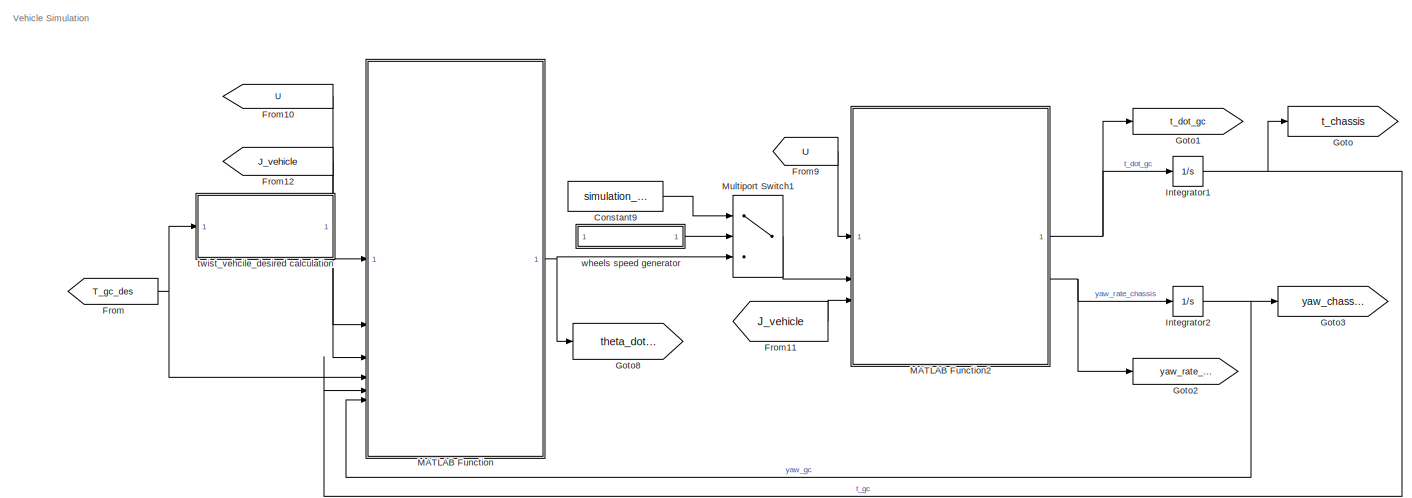
[diagram: root canvas - part 1/4, top center region]
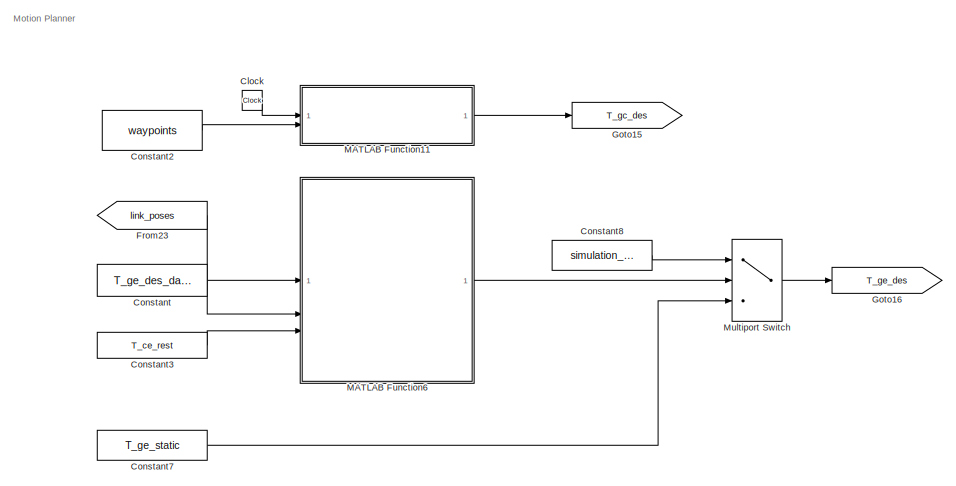
[diagram: root canvas - part 2/4, top left region]
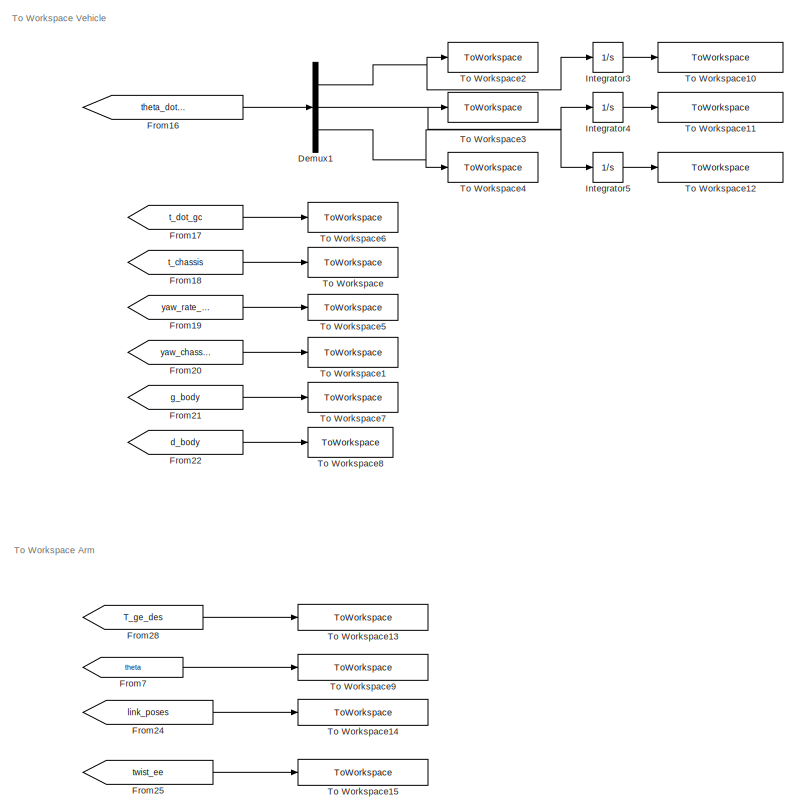
[diagram: root canvas - part 3/4, middle right region]
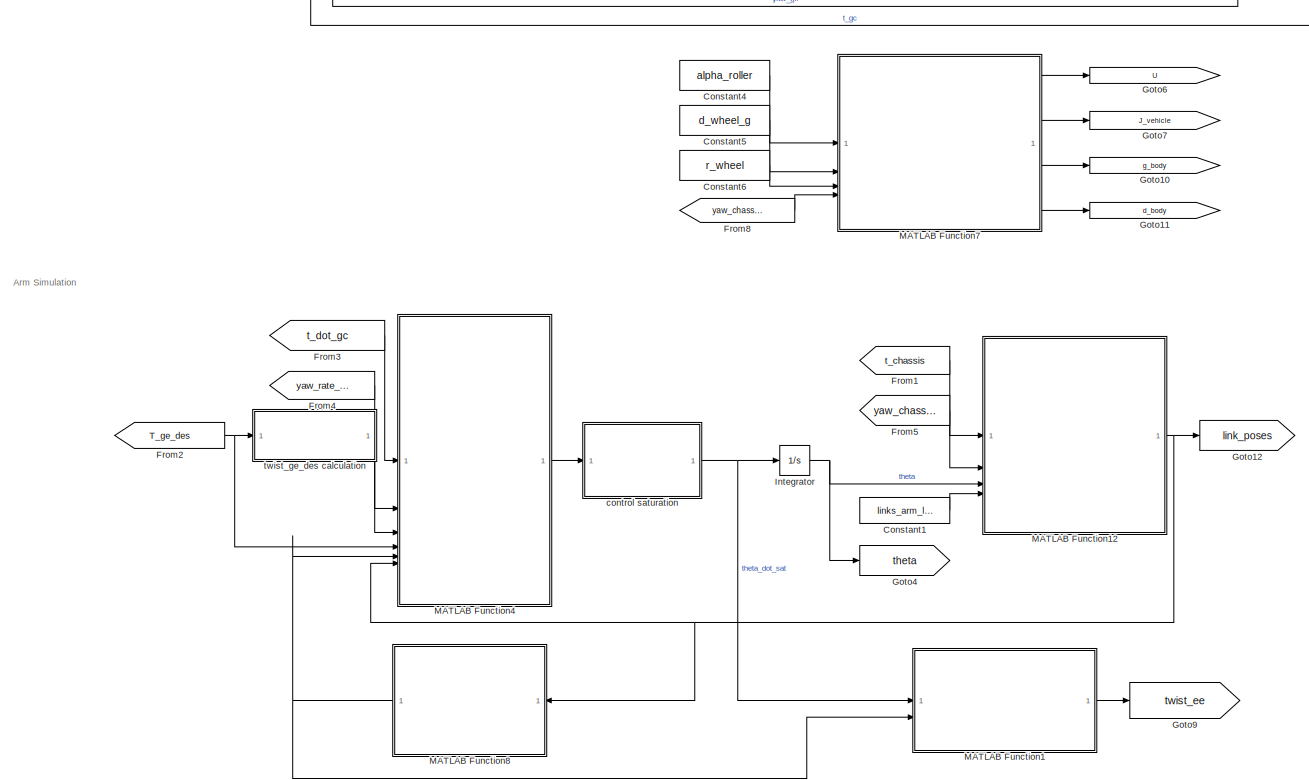
[diagram: root canvas - part 4/4, bottom center region]
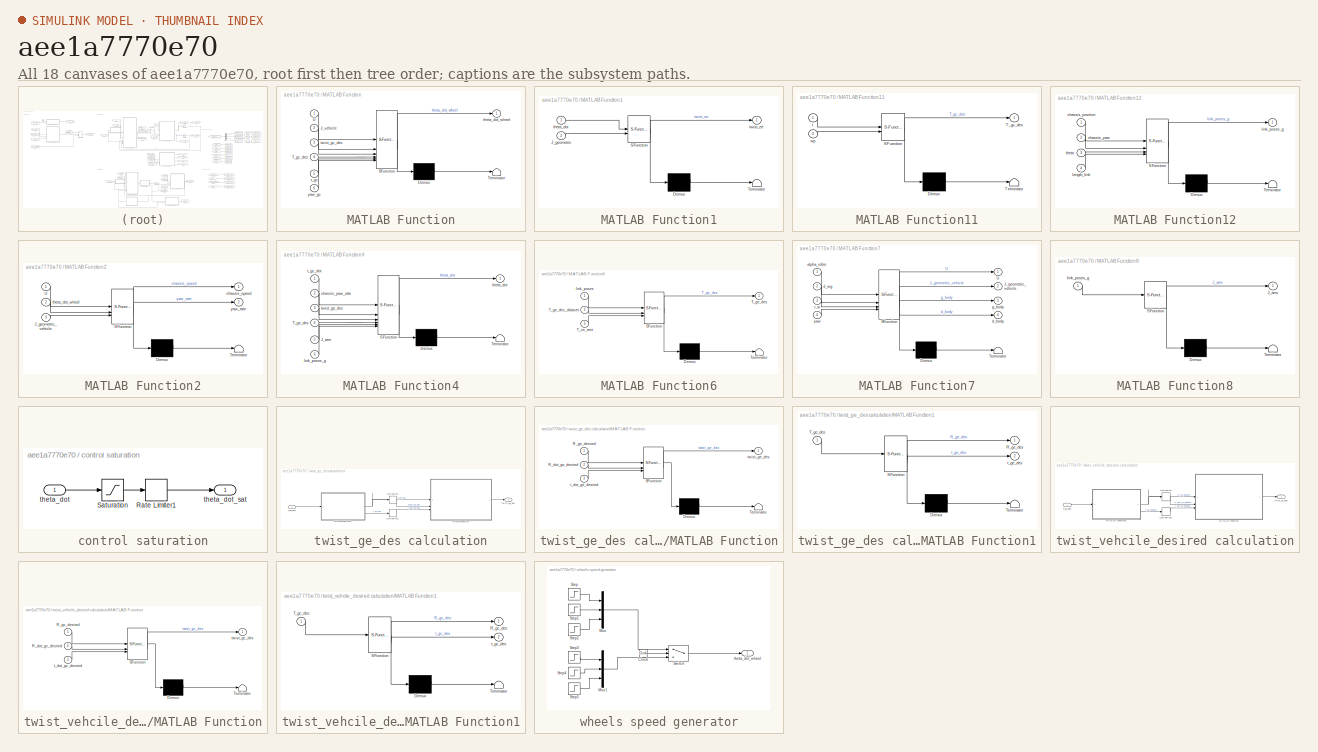
[diagram: thumbnail index - all 18 canvases of the model, root first then tree order]
MODEL slx_aee1a7770e70
KIND model
CONFIG AbsTol = auto
CONFIG EnableMultiTasking = off
CONFIG FixedStep = simulation_time_step
CONFIG MaxStep = auto
CONFIG MinStep = auto
CONFIG RelTol = 1e-3
CONFIG SampleTimeConstraint = Unconstrained
CONFIG SolverName = FixedStepAuto
CONFIG StartTime = 0.0
CONFIG StopTime = 120
BLOCK [Clock] Clock
BLOCK [Constant] Constant
  Value = T_ge_des_dataset
BLOCK [Constant] Constant1
  Value = links_arm_length
BLOCK [Constant] Constant2
  Value = waypoints
BLOCK [Constant] Constant3
  Value = T_ce_rest
BLOCK [Constant] Constant4
  Value = alpha_roller
BLOCK [Constant] Constant5
  Value = d_wheel_g
BLOCK [Constant] Constant6
  Value = r_wheel
BLOCK [Constant] Constant7
  Value = T_ge_static
BLOCK [Constant] Constant8
  Value = simulation_choice
BLOCK [Constant] Constant9
  Value = simulation_choice
BLOCK [Demux] Demux1
  Outputs = 3
BLOCK [From] From
  GotoTag = T_gc_des
BLOCK [From] From1
  GotoTag = t_chassis
BLOCK [From] From10
  GotoTag = U
BLOCK [From] From11
  GotoTag = J_vehicle
BLOCK [From] From12
  GotoTag = J_vehicle
BLOCK [From] From16
  GotoTag = theta_dot_wheels
BLOCK [From] From17
  GotoTag = t_dot_gc
BLOCK [From] From18
  GotoTag = t_chassis
BLOCK [From] From19
  GotoTag = yaw_rate_chassis
BLOCK [From] From2
  GotoTag = T_ge_des
BLOCK [From] From20
  GotoTag = yaw_chassis
BLOCK [From] From21
  GotoTag = g_body
BLOCK [From] From22
  GotoTag = d_body
BLOCK [From] From23
  GotoTag = link_poses
BLOCK [From] From24
  GotoTag = link_poses
BLOCK [From] From25
  GotoTag = twist_ee
BLOCK [From] From28
  GotoTag = T_ge_des
BLOCK [From] From3
  GotoTag = t_dot_gc
BLOCK [From] From4
  GotoTag = yaw_rate_chassis
BLOCK [From] From5
  GotoTag = yaw_chassis
BLOCK [From] From7
  GotoTag = theta
BLOCK [From] From8
  GotoTag = yaw_chassis
BLOCK [From] From9
  GotoTag = U
BLOCK [Goto] Goto
  GotoTag = t_chassis
BLOCK [Goto] Goto1
  GotoTag = t_dot_gc
BLOCK [Goto] Goto10
  GotoTag = g_body
BLOCK [Goto] Goto11
  GotoTag = d_body
BLOCK [Goto] Goto12
  GotoTag = link_poses
BLOCK [Goto] Goto15
  GotoTag = T_gc_des
BLOCK [Goto] Goto16
  GotoTag = T_ge_des
BLOCK [Goto] Goto2
  GotoTag = yaw_rate_chassis
BLOCK [Goto] Goto3
  GotoTag = yaw_chassis
BLOCK [Goto] Goto4
  GotoTag = theta
BLOCK [Goto] Goto6
  GotoTag = U
BLOCK [Goto] Goto7
  GotoTag = J_vehicle
BLOCK [Goto] Goto8
  GotoTag = theta_dot_wheels
BLOCK [Goto] Goto9
  GotoTag = twist_ee
BLOCK [Integrator] Integrator
  InitialCondition = theta_arm_initial
  WrapState = on
  WrappedStateLowerValue = zeros(7,1)
  WrappedStateUpperValue = 2 * pi * ones(7,1)
BLOCK [Integrator] Integrator1
  InitialCondition = chassis_position_initial
BLOCK [Integrator] Integrator2
  WrappedStateLowerValue = 0
  WrappedStateUpperValue = 2*pi
BLOCK [Integrator] Integrator3
BLOCK [Integrator] Integrator4
BLOCK [Integrator] Integrator5
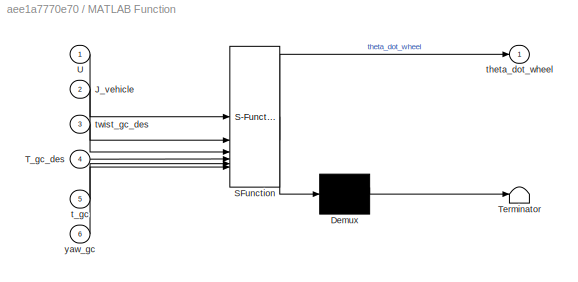
BLOCK [SubSystem] MATLAB Function
  ErrorFcn = Stateflow.Translate.translate
  PermitHierarchicalResolution = ExplicitOnly
  SFBlockType = MATLAB Function
  TreatAsAtomicUnit = on
BLOCK [Demux] MATLAB Function/ Demux 
  Outputs = 1
BLOCK [S-Function] MATLAB Function/ SFunction 
  EnableBusSupport = on
  FunctionName = sf_sfun
  PortCounts = [6 2]
  SFcnIsStateOwnerBlock = off
  SFunctionDeploymentMode = off
  Tag = Stateflow S-Function 5
BLOCK [Terminator] MATLAB Function/ Terminator 
BLOCK [Inport] MATLAB Function/J_vehicle
  Port = 2
BLOCK [Inport] MATLAB Function/T_gc_des
  Port = 4
BLOCK [Inport] MATLAB Function/U
BLOCK [Inport] MATLAB Function/t_gc
  Port = 5
BLOCK [Outport] MATLAB Function/theta_dot_wheel
BLOCK [Inport] MATLAB Function/twist_gc_des
  Port = 3
BLOCK [Inport] MATLAB Function/yaw_gc
  Port = 6
BLOCK [SubSystem] MATLAB Function1
  ErrorFcn = Stateflow.Translate.translate
  PermitHierarchicalResolution = ExplicitOnly
  SFBlockType = MATLAB Function
  TreatAsAtomicUnit = on
BLOCK [Demux] MATLAB Function1/ Demux 
  Outputs = 1
BLOCK [S-Function] MATLAB Function1/ SFunction 
  EnableBusSupport = on
  FunctionName = sf_sfun
  PortCounts = [2 2]
  SFcnIsStateOwnerBlock = off
  SFunctionDeploymentMode = off
  Tag = Stateflow S-Function 7
BLOCK [Terminator] MATLAB Function1/ Terminator 
BLOCK [Inport] MATLAB Function1/J_geometric
  Port = 2
BLOCK [Inport] MATLAB Function1/theta_dot
BLOCK [Outport] MATLAB Function1/twist_ee
BLOCK [SubSystem] MATLAB Function11
  ErrorFcn = Stateflow.Translate.translate
  PermitHierarchicalResolution = ExplicitOnly
  SFBlockType = MATLAB Function
  TreatAsAtomicUnit = on
BLOCK [Demux] MATLAB Function11/ Demux 
  Outputs = 1
BLOCK [S-Function] MATLAB Function11/ SFunction 
  EnableBusSupport = on
  FunctionName = sf_sfun
  PortCounts = [2 2]
  SFcnIsStateOwnerBlock = off
  SFunctionDeploymentMode = off
  Tag = Stateflow S-Function 8
BLOCK [Terminator] MATLAB Function11/ Terminator 
BLOCK [Outport] MATLAB Function11/T_gc_des
BLOCK [Inport] MATLAB Function11/t
BLOCK [Inport] MATLAB Function11/wp
  Port = 2
BLOCK [SubSystem] MATLAB Function12
  ErrorFcn = Stateflow.Translate.translate
  PermitHierarchicalResolution = ExplicitOnly
  SFBlockType = MATLAB Function
  TreatAsAtomicUnit = on
BLOCK [Demux] MATLAB Function12/ Demux 
  Outputs = 1
BLOCK [S-Function] MATLAB Function12/ SFunction 
  EnableBusSupport = on
  FunctionName = sf_sfun
  PortCounts = [4 2]
  SFcnIsStateOwnerBlock = off
  SFunctionDeploymentMode = off
  Tag = Stateflow S-Function 17
BLOCK [Terminator] MATLAB Function12/ Terminator 
BLOCK [Inport] MATLAB Function12/chassis_position
BLOCK [Inport] MATLAB Function12/chassis_yaw
  Port = 2
BLOCK [Inport] MATLAB Function12/length_link
  Port = 4
BLOCK [Outport] MATLAB Function12/link_poses_g
BLOCK [Inport] MATLAB Function12/theta
  Port = 3
BLOCK [SubSystem] MATLAB Function2
  ErrorFcn = Stateflow.Translate.translate
  PermitHierarchicalResolution = ExplicitOnly
  SFBlockType = MATLAB Function
  TreatAsAtomicUnit = on
BLOCK [Demux] MATLAB Function2/ Demux 
  Outputs = 1
BLOCK [S-Function] MATLAB Function2/ SFunction 
  EnableBusSupport = on
  FunctionName = sf_sfun
  PortCounts = [3 3]
  SFcnIsStateOwnerBlock = off
  SFunctionDeploymentMode = off
  Tag = Stateflow S-Function 18
BLOCK [Terminator] MATLAB Function2/ Terminator 
BLOCK [Inport] MATLAB Function2/J_geometric_vehicle
  Port = 3
BLOCK [Inport] MATLAB Function2/U
BLOCK [Outport] MATLAB Function2/chassis_speed
BLOCK [Inport] MATLAB Function2/theta_dot_wheel
  Port = 2
BLOCK [Outport] MATLAB Function2/yaw_rate
  Port = 2
BLOCK [SubSystem] MATLAB Function4
  ErrorFcn = Stateflow.Translate.translate
  PermitHierarchicalResolution = ExplicitOnly
  SFBlockType = MATLAB Function
  TreatAsAtomicUnit = on
BLOCK [Demux] MATLAB Function4/ Demux 
  Outputs = 1
BLOCK [S-Function] MATLAB Function4/ SFunction 
  EnableBusSupport = on
  FunctionName = sf_sfun
  PortCounts = [6 2]
  SFcnIsStateOwnerBlock = off
  SFunctionDeploymentMode = off
  Tag = Stateflow S-Function 19
BLOCK [Terminator] MATLAB Function4/ Terminator 
BLOCK [Inport] MATLAB Function4/J_arm
  Port = 5
BLOCK [Inport] MATLAB Function4/T_ge_des
  Port = 4
BLOCK [Inport] MATLAB Function4/chassis_yaw_rate
  Port = 2
BLOCK [Inport] MATLAB Function4/link_poses_g
  Port = 6
BLOCK [Inport] MATLAB Function4/t_gc_dot
BLOCK [Outport] MATLAB Function4/theta_dot
BLOCK [Inport] MATLAB Function4/twist_ge_des
  Port = 3
BLOCK [SubSystem] MATLAB Function6
  ErrorFcn = Stateflow.Translate.translate
  PermitHierarchicalResolution = ExplicitOnly
  SFBlockType = MATLAB Function
  TreatAsAtomicUnit = on
BLOCK [Demux] MATLAB Function6/ Demux 
  Outputs = 1
BLOCK [S-Function] MATLAB Function6/ SFunction 
  EnableBusSupport = on
  FunctionName = sf_sfun
  PortCounts = [3 2]
  SFcnIsStateOwnerBlock = off
  SFunctionDeploymentMode = off
  Tag = Stateflow S-Function 21
BLOCK [Terminator] MATLAB Function6/ Terminator 
BLOCK [Inport] MATLAB Function6/T_ce_rest
  Port = 3
BLOCK [Outport] MATLAB Function6/T_ge_des
BLOCK [Inport] MATLAB Function6/T_ge_des_dataset
  Port = 2
BLOCK [Inport] MATLAB Function6/link_poses
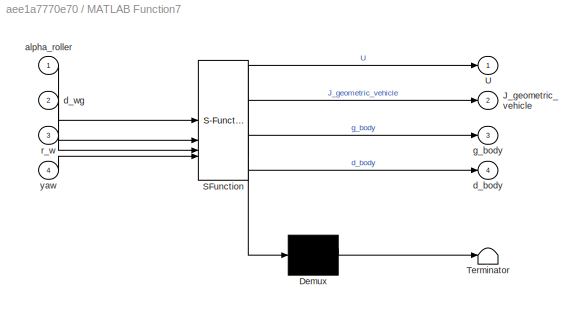
BLOCK [SubSystem] MATLAB Function7
  ErrorFcn = Stateflow.Translate.translate
  PermitHierarchicalResolution = ExplicitOnly
  SFBlockType = MATLAB Function
  TreatAsAtomicUnit = on
BLOCK [Demux] MATLAB Function7/ Demux 
  Outputs = 1
BLOCK [S-Function] MATLAB Function7/ SFunction 
  EnableBusSupport = on
  FunctionName = sf_sfun
  PortCounts = [4 5]
  SFcnIsStateOwnerBlock = off
  SFunctionDeploymentMode = off
  Tag = Stateflow S-Function 22
BLOCK [Terminator] MATLAB Function7/ Terminator 
BLOCK [Outport] MATLAB Function7/J_geometric_vehicle
  Port = 2
BLOCK [Outport] MATLAB Function7/U
BLOCK [Inport] MATLAB Function7/alpha_roller
BLOCK [Outport] MATLAB Function7/d_body
  Port = 4
BLOCK [Inport] MATLAB Function7/d_wg
  Port = 2
BLOCK [Outport] MATLAB Function7/g_body
  Port = 3
BLOCK [Inport] MATLAB Function7/r_w
  Port = 3
BLOCK [Inport] MATLAB Function7/yaw
  Port = 4
BLOCK [SubSystem] MATLAB Function8
  ErrorFcn = Stateflow.Translate.translate
  NameLocation = top
  PermitHierarchicalResolution = ExplicitOnly
  SFBlockType = MATLAB Function
  TreatAsAtomicUnit = on
BLOCK [Demux] MATLAB Function8/ Demux 
  Outputs = 1
BLOCK [S-Function] MATLAB Function8/ SFunction 
  EnableBusSupport = on
  FunctionName = sf_sfun
  PortCounts = [1 2]
  SFcnIsStateOwnerBlock = off
  SFunctionDeploymentMode = off
  Tag = Stateflow S-Function 23
BLOCK [Terminator] MATLAB Function8/ Terminator 
BLOCK [Outport] MATLAB Function8/J_arm
BLOCK [Inport] MATLAB Function8/link_poses_g
BLOCK [MultiPortSwitch] Multiport Switch
  InputSameDT = off
  Inputs = 2
  SaturateOnIntegerOverflow = off
BLOCK [MultiPortSwitch] Multiport Switch1
  InputSameDT = off
  Inputs = 2
  SaturateOnIntegerOverflow = off
BLOCK [ToWorkspace] To Workspace
  FixptAsFi = on
  MaxDataPoints = inf
  SampleTime = -1
  SaveFormat = Timeseries
  VariableName = pos
BLOCK [ToWorkspace] To Workspace1
  FixptAsFi = on
  MaxDataPoints = inf
  SampleTime = -1
  SaveFormat = Timeseries
  VariableName = psi
BLOCK [ToWorkspace] To Workspace10
  FixptAsFi = on
  MaxDataPoints = inf
  SampleTime = -1
  SaveFormat = Timeseries
  VariableName = theta_wheel_1
BLOCK [ToWorkspace] To Workspace11
  FixptAsFi = on
  MaxDataPoints = inf
  SampleTime = -1
  SaveFormat = Timeseries
  VariableName = theta_wheel_2
BLOCK [ToWorkspace] To Workspace12
  FixptAsFi = on
  MaxDataPoints = inf
  SampleTime = -1
  SaveFormat = Timeseries
  VariableName = theta_wheel_3
BLOCK [ToWorkspace] To Workspace13
  FixptAsFi = on
  MaxDataPoints = inf
  SampleTime = -1
  SaveFormat = Timeseries
  VariableName = T_ge_desired
BLOCK [ToWorkspace] To Workspace14
  FixptAsFi = on
  MaxDataPoints = inf
  SampleTime = -1
  SaveFormat = Timeseries
  VariableName = link_poses
BLOCK [ToWorkspace] To Workspace15
  FixptAsFi = on
  MaxDataPoints = inf
  SampleTime = -1
  SaveFormat = Timeseries
  VariableName = twist_ee
BLOCK [ToWorkspace] To Workspace2
  FixptAsFi = on
  MaxDataPoints = inf
  SampleTime = -1
  SaveFormat = Timeseries
  VariableName = theta1_dot
BLOCK [ToWorkspace] To Workspace3
  FixptAsFi = on
  MaxDataPoints = inf
  SampleTime = -1
  SaveFormat = Timeseries
  VariableName = theta2_dot
BLOCK [ToWorkspace] To Workspace4
  FixptAsFi = on
  MaxDataPoints = inf
  SampleTime = -1
  SaveFormat = Timeseries
  VariableName = theta3_dot
BLOCK [ToWorkspace] To Workspace5
  FixptAsFi = on
  MaxDataPoints = inf
  SampleTime = -1
  SaveFormat = Timeseries
  VariableName = omega
BLOCK [ToWorkspace] To Workspace6
  FixptAsFi = on
  MaxDataPoints = inf
  SampleTime = -1
  SaveFormat = Timeseries
  VariableName = v_G
BLOCK [ToWorkspace] To Workspace7
  FixptAsFi = on
  MaxDataPoints = inf
  SampleTime = -1
  SaveFormat = Timeseries
  VariableName = g_body
BLOCK [ToWorkspace] To Workspace8
  FixptAsFi = on
  MaxDataPoints = inf
  SampleTime = -1
  SaveFormat = Timeseries
  VariableName = d_body
BLOCK [ToWorkspace] To Workspace9
  FixptAsFi = on
  MaxDataPoints = inf
  SampleTime = -1
  SaveFormat = Timeseries
  VariableName = theta
BLOCK [SubSystem] control saturation
BLOCK [RateLimiter] control saturation/Rate Limiter1
  FallingSlewLimit = -pi/2
  RisingSlewLimit = pi/2
  SampleTimeMode = inherited
BLOCK [Saturate] control saturation/Saturation
  LowerLimit = -[pi/6; pi/6; pi/6; pi/6; pi/6; pi/6; pi/12]
  UpperLimit = [pi/6; pi/6; pi/6; pi/6; pi/6; pi/6; pi/12]
BLOCK [Inport] control saturation/theta_dot
BLOCK [Outport] control saturation/theta_dot_sat
BLOCK [SubSystem] twist_ge_des calculation
BLOCK [Derivative] twist_ge_des calculation/Derivative
BLOCK [Derivative] twist_ge_des calculation/Derivative1
BLOCK [SubSystem] twist_ge_des calculation/MATLAB Function
  ErrorFcn = Stateflow.Translate.translate
  PermitHierarchicalResolution = ExplicitOnly
  SFBlockType = MATLAB Function
  TreatAsAtomicUnit = on
BLOCK [Demux] twist_ge_des calculation/MATLAB Function/ Demux 
  Outputs = 1
BLOCK [S-Function] twist_ge_des calculation/MATLAB Function/ SFunction 
  EnableBusSupport = on
  FunctionName = sf_sfun
  PortCounts = [3 2]
  SFcnIsStateOwnerBlock = off
  SFunctionDeploymentMode = off
  Tag = Stateflow S-Function 24
BLOCK [Terminator] twist_ge_des calculation/MATLAB Function/ Terminator 
BLOCK [Inport] twist_ge_des calculation/MATLAB Function/R_dot_ge_desired
  Port = 2
BLOCK [Inport] twist_ge_des calculation/MATLAB Function/R_ge_desired
BLOCK [Inport] twist_ge_des calculation/MATLAB Function/t_dot_ge_desired
  Port = 3
BLOCK [Outport] twist_ge_des calculation/MATLAB Function/twist_ge_des
BLOCK [SubSystem] twist_ge_des calculation/MATLAB Function1
  ErrorFcn = Stateflow.Translate.translate
  PermitHierarchicalResolution = ExplicitOnly
  SFBlockType = MATLAB Function
  TreatAsAtomicUnit = on
BLOCK [Demux] twist_ge_des calculation/MATLAB Function1/ Demux 
  Outputs = 1
BLOCK [S-Function] twist_ge_des calculation/MATLAB Function1/ SFunction 
  EnableBusSupport = on
  FunctionName = sf_sfun
  PortCounts = [1 3]
  SFcnIsStateOwnerBlock = off
  SFunctionDeploymentMode = off
  Tag = Stateflow S-Function 25
BLOCK [Terminator] twist_ge_des calculation/MATLAB Function1/ Terminator 
BLOCK [Outport] twist_ge_des calculation/MATLAB Function1/R_ge_des
BLOCK [Inport] twist_ge_des calculation/MATLAB Function1/T_ge_des
BLOCK [Outport] twist_ge_des calculation/MATLAB Function1/t_ge_des
  Port = 2
BLOCK [Inport] twist_ge_des calculation/T_ge_des
BLOCK [Outport] twist_ge_des calculation/twist_ee_des
BLOCK [SubSystem] twist_vehcile_desired calculation
BLOCK [Derivative] twist_vehcile_desired calculation/Derivative
BLOCK [Derivative] twist_vehcile_desired calculation/Derivative1
BLOCK [SubSystem] twist_vehcile_desired calculation/MATLAB Function
  ErrorFcn = Stateflow.Translate.translate
  PermitHierarchicalResolution = ExplicitOnly
  SFBlockType = MATLAB Function
  TreatAsAtomicUnit = on
BLOCK [Demux] twist_vehcile_desired calculation/MATLAB Function/ Demux 
  Outputs = 1
BLOCK [S-Function] twist_vehcile_desired calculation/MATLAB Function/ SFunction 
  EnableBusSupport = on
  FunctionName = sf_sfun
  PortCounts = [3 2]
  SFcnIsStateOwnerBlock = off
  SFunctionDeploymentMode = off
  Tag = Stateflow S-Function 26
BLOCK [Terminator] twist_vehcile_desired calculation/MATLAB Function/ Terminator 
BLOCK [Inport] twist_vehcile_desired calculation/MATLAB Function/R_dot_gc_desired
  Port = 2
BLOCK [Inport] twist_vehcile_desired calculation/MATLAB Function/R_gc_desired
BLOCK [Inport] twist_vehcile_desired calculation/MATLAB Function/t_dot_gc_desired
  Port = 3
BLOCK [Outport] twist_vehcile_desired calculation/MATLAB Function/twist_gc_des
BLOCK [SubSystem] twist_vehcile_desired calculation/MATLAB Function1
  ErrorFcn = Stateflow.Translate.translate
  PermitHierarchicalResolution = ExplicitOnly
  SFBlockType = MATLAB Function
  TreatAsAtomicUnit = on
BLOCK [Demux] twist_vehcile_desired calculation/MATLAB Function1/ Demux 
  Outputs = 1
BLOCK [S-Function] twist_vehcile_desired calculation/MATLAB Function1/ SFunction 
  EnableBusSupport = on
  FunctionName = sf_sfun
  PortCounts = [1 3]
  SFcnIsStateOwnerBlock = off
  SFunctionDeploymentMode = off
  Tag = Stateflow S-Function 27
BLOCK [Terminator] twist_vehcile_desired calculation/MATLAB Function1/ Terminator 
BLOCK [Outport] twist_vehcile_desired calculation/MATLAB Function1/R_gc_des
BLOCK [Inport] twist_vehcile_desired calculation/MATLAB Function1/T_gc_des
BLOCK [Outport] twist_vehcile_desired calculation/MATLAB Function1/t_gc_des
  Port = 2
BLOCK [Inport] twist_vehcile_desired calculation/T_gc_des
BLOCK [Outport] twist_vehcile_desired calculation/twist_gc_des
BLOCK [SubSystem] wheels speed generator
BLOCK [Clock] wheels speed generator/Clock
BLOCK [Mux] wheels speed generator/Mux
  DisplayOption = bar
  Inputs = 3
BLOCK [Mux] wheels speed generator/Mux1
  DisplayOption = bar
  Inputs = 3
BLOCK [Step] wheels speed generator/Step
  After = -5
  SampleTime = 0
  Time = 0
BLOCK [Step] wheels speed generator/Step1
  After = 5
  SampleTime = 0
  Time = 0
BLOCK [Step] wheels speed generator/Step2
  After = 5
  SampleTime = 0
  Time = 0
BLOCK [Step] wheels speed generator/Step3
  After = 0
  SampleTime = 0
  Time = 0
BLOCK [Step] wheels speed generator/Step4
  After = 0
  SampleTime = 0
  Time = 0
BLOCK [Step] wheels speed generator/Step5
  After = 0
  SampleTime = 0
  Time = 0
BLOCK [Switch] wheels speed generator/Switch
  Criteria = u2 > Threshold
  InputSameDT = off
  SaturateOnIntegerOverflow = off
  Threshold = 20
BLOCK [Outport] wheels speed generator/theta_dot_wheel
ANNOTATION (root): Arm Simulation
ANNOTATION (root): Motion Planner
ANNOTATION (root): To Workspace Arm
ANNOTATION (root): To Workspace Vehicle
ANNOTATION (root): Vehicle Simulation
LINE Clock:1 -> MATLAB Function11:1
LINE Constant1:1 -> MATLAB Function12:4
LINE Constant2:1 -> MATLAB Function11:2
LINE Constant3:1 -> MATLAB Function6:3
LINE Constant4:1 -> MATLAB Function7:1
LINE Constant5:1 -> MATLAB Function7:2
LINE Constant6:1 -> MATLAB Function7:3
LINE Constant7:1 -> Multiport Switch:3
LINE Constant8:1 -> Multiport Switch:1
LINE Constant9:1 -> Multiport Switch1:1
LINE Constant:1 -> MATLAB Function6:2
NET Demux1:1 -> Integrator3:1, To Workspace2:1
NET Demux1:2 -> Integrator4:1, To Workspace3:1
NET Demux1:3 -> Integrator5:1, To Workspace4:1
LINE From10:1 -> MATLAB Function:1
LINE From11:1 -> MATLAB Function2:3
LINE From12:1 -> MATLAB Function:2
LINE From16:1 -> Demux1:1
LINE From17:1 -> To Workspace6:1
LINE From18:1 -> To Workspace:1
LINE From19:1 -> To Workspace5:1
LINE From1:1 -> MATLAB Function12:1
LINE From20:1 -> To Workspace1:1
LINE From21:1 -> To Workspace7:1
LINE From22:1 -> To Workspace8:1
LINE From23:1 -> MATLAB Function6:1
LINE From24:1 -> To Workspace14:1
LINE From25:1 -> To Workspace15:1
LINE From28:1 -> To Workspace13:1
NET From2:1 -> MATLAB Function4:4, twist_ge_des calculation:1
LINE From3:1 -> MATLAB Function4:1
LINE From4:1 -> MATLAB Function4:2
LINE From5:1 -> MATLAB Function12:2
LINE From7:1 -> To Workspace9:1
LINE From8:1 -> MATLAB Function7:4
LINE From9:1 -> MATLAB Function2:1
NET From:1 -> MATLAB Function:4, twist_vehcile_desired calculation:1
NET Integrator1:1 -> Goto:1, MATLAB Function:5
NET Integrator2:1 -> Goto3:1, MATLAB Function:6
LINE Integrator3:1 -> To Workspace10:1
LINE Integrator4:1 -> To Workspace11:1
LINE Integrator5:1 -> To Workspace12:1
NET Integrator:1 -> Goto4:1, MATLAB Function12:3
LINE MATLAB Function11:1 -> Goto15:1
NET MATLAB Function12:1 -> Goto12:1, MATLAB Function4:6, MATLAB Function8:1
LINE MATLAB Function1:1 -> Goto9:1
NET MATLAB Function2:1 -> Goto1:1, Integrator1:1
NET MATLAB Function2:2 -> Goto2:1, Integrator2:1
LINE MATLAB Function4:1 -> control saturation:1
LINE MATLAB Function6:1 -> Multiport Switch:2
LINE MATLAB Function7:1 -> Goto6:1
LINE MATLAB Function7:2 -> Goto7:1
LINE MATLAB Function7:3 -> Goto10:1
LINE MATLAB Function7:4 -> Goto11:1
NET MATLAB Function8:1 -> MATLAB Function1:2, MATLAB Function4:5
NET MATLAB Function:1 -> Goto8:1, Multiport Switch1:3
LINE Multiport Switch1:1 -> MATLAB Function2:2
LINE Multiport Switch:1 -> Goto16:1
LINE control saturation/Rate Limiter1:1 -> control saturation/theta_dot_sat:1
LINE control saturation/Saturation:1 -> control saturation/Rate Limiter1:1
LINE control saturation/theta_dot:1 -> control saturation/Saturation:1
NET control saturation:1 -> Integrator:1, MATLAB Function1:1
LINE twist_ge_des calculation/Derivative1:1 -> twist_ge_des calculation/MATLAB Function:3
LINE twist_ge_des calculation/Derivative:1 -> twist_ge_des calculation/MATLAB Function:2
NET twist_ge_des calculation/MATLAB Function1:1 -> twist_ge_des calculation/Derivative:1, twist_ge_des calculation/MATLAB Function:1
LINE twist_ge_des calculation/MATLAB Function1:2 -> twist_ge_des calculation/Derivative1:1
LINE twist_ge_des calculation/MATLAB Function:1 -> twist_ge_des calculation/twist_ee_des:1
LINE twist_ge_des calculation/T_ge_des:1 -> twist_ge_des calculation/MATLAB Function1:1
LINE twist_ge_des calculation:1 -> MATLAB Function4:3
LINE twist_vehcile_desired calculation/Derivative1:1 -> twist_vehcile_desired calculation/MATLAB Function:3
LINE twist_vehcile_desired calculation/Derivative:1 -> twist_vehcile_desired calculation/MATLAB Function:2
NET twist_vehcile_desired calculation/MATLAB Function1:1 -> twist_vehcile_desired calculation/Derivative:1, twist_vehcile_desired calculation/MATLAB Function:1
LINE twist_vehcile_desired calculation/MATLAB Function1:2 -> twist_vehcile_desired calculation/Derivative1:1
LINE twist_vehcile_desired calculation/MATLAB Function:1 -> twist_vehcile_desired calculation/twist_gc_des:1
LINE twist_vehcile_desired calculation/T_gc_des:1 -> twist_vehcile_desired calculation/MATLAB Function1:1
LINE twist_vehcile_desired calculation:1 -> MATLAB Function:3
LINE wheels speed generator/Clock:1 -> wheels speed generator/Switch:2
LINE wheels speed generator/Mux1:1 -> wheels speed generator/Switch:3
LINE wheels speed generator/Mux:1 -> wheels speed generator/Switch:1
LINE wheels speed generator/Step1:1 -> wheels speed generator/Mux:2
LINE wheels speed generator/Step2:1 -> wheels speed generator/Mux:3
LINE wheels speed generator/Step3:1 -> wheels speed generator/Mux1:1
LINE wheels speed generator/Step4:1 -> wheels speed generator/Mux1:2
LINE wheels speed generator/Step5:1 -> wheels speed generator/Mux1:3
LINE wheels speed generator/Step:1 -> wheels speed generator/Mux:1
LINE wheels speed generator/Switch:1 -> wheels speed generator/theta_dot_wheel:1
LINE wheels speed generator:1 -> Multiport Switch1:2
note: NET lines group one-source signal fan-out (src -> all destinations, sorted); 1:1 wires keep LINE
CHART MATLAB Function8 states=1 transitions=1
  STATE_LABEL 'eML_blk_kernel()'
  STATE_LABEL 'SCRIPT:\nfunction J_arm  = J_arm_calculation(link_poses_g)\n\n    % Computes the geometric Jacobian from a series of transformation matrices.\n    % number_of_poses - 1 (global) - 1 (chassis)  = num joints\n    num_arm_links = size(link_poses_g, 3) - 1 - 1; \n    \n    % ===============================\n    % memory preallocation \n    % ===============================\n    % Preallocate Jacobian submatrice...<+2367ch>'
CHART twist_ge_des calculation/MATLAB Function states=1 transitions=1
  STATE_LABEL 'eML_blk_kernel()'
  STATE_LABEL "SCRIPT:\nfunction twist_ge_des = desired_twist_ee_calculation(R_ge_desired, R_dot_ge_desired, t_dot_ge_desired)\n\nomega_ge_des = inv_hat(R_dot_ge_desired*R_ge_desired');\ntwist_ge_des = [t_dot_ge_desired; omega_ge_des];"
CHART twist_ge_des calculation/MATLAB Function1 states=1 transitions=1
  STATE_LABEL 'eML_blk_kernel()'
  STATE_LABEL 'SCRIPT:\nfunction [R_ge_des, t_ge_des]  = R_t_extraction(T_ge_des)\n\nt_ge_des = T_ge_des(1:3, 4);\nR_ge_des = T_ge_des(1:3, 1:3);\n\n\n\n'
CHART twist_vehcile_desired calculation/MATLAB Function states=1 transitions=1
  STATE_LABEL 'eML_blk_kernel()'
  STATE_LABEL "SCRIPT:\nfunction twist_gc_des = desired_twist_gc_calculation(R_gc_desired, R_dot_gc_desired, t_dot_gc_desired)\n\nomega_d = inv_hat(R_dot_gc_desired*R_gc_desired');\ntwist_gc_des = [t_dot_gc_desired; omega_d];"
CHART twist_vehcile_desired calculation/MATLAB Function1 states=1 transitions=1
  STATE_LABEL 'eML_blk_kernel()'
  STATE_LABEL 'SCRIPT:\nfunction [R_gc_des, t_gc_des]  = R_t_extraction(T_gc_des)\n\nt_gc_des = T_gc_des(1:3, 4);\nR_gc_des = T_gc_des(1:3, 1:3);\n\n\n\n'
CHART MATLAB Function states=1 transitions=1
  STATE_LABEL 'eML_blk_kernel()'
  STATE_LABEL 'SCRIPT:\nfunction theta_dot_wheel   = vehicle_CLIK(U, J_vehicle, twist_gc_des, T_gc_des, t_gc, yaw_gc)\n\n% =========================\n% CLIK control gain\n% =========================\nK = [1, 0, 0;\n     0, 1, 0;\n     0, 0, 1]*1e-1;\n\n% =========================\n% error calculation\n% =========================\n% orientation error ==================================\nyaw_gc_des = atan2(T_gc_des(2,1), T_gc_de...<+522ch>'
CHART MATLAB Function1 states=1 transitions=1
  STATE_LABEL 'eML_blk_kernel()'
  STATE_LABEL 'SCRIPT:\nfunction twist_ee  = arm_forward_diff_kinematics(theta_dot,J_geometric)\n\ntwist_ee = J_geometric * theta_dot;'
CHART MATLAB Function11 states=1 transitions=1
  STATE_LABEL 'eML_blk_kernel()'
  STATE_LABEL 'SCRIPT:\nfunction T_gc_des = vehicle_pose_generator(t, wp)\n% waypoint_interpolation_manager - Interpolates trajectory between spatial waypoints and orientations.\n\n% Total number of waypoints\nnum_wp = size(wp,1);\n\n% Time duration between each waypoint (constant)\nt_wp = 10;\n\n% Compute the indices of the waypoints to interpolate between\n% idx_curr: current waypoint, idx_next: next waypoint\nidx_curr = ...<+1404ch>'
CHART MATLAB Function12 states=1 transitions=1
  STATE_LABEL 'eML_blk_kernel()'
  STATE_LABEL 'SCRIPT:\nfunction link_poses_g  = arm_forward_kinematics_DH(chassis_position, chassis_yaw, theta, length_link)\n\n    DH_table = [\n       length_link(1),  theta(1),  0,  -pi/2;\n       length_link(2),  theta(2),  0,   pi/2;\n       length_link(3),  theta(3),  0,   pi/2;\n       length_link(4),  theta(4),  0,  -pi/2;\n       length_link(5),  theta(5),  0,  -pi/2;\n       length_link(6),  theta(6),  0,   pi...<+1947ch>'
CHART MATLAB Function2 states=1 transitions=1
  STATE_LABEL 'eML_blk_kernel()'
  STATE_LABEL 'SCRIPT:\nfunction [chassis_speed, yaw_rate] = vehicle_kinematics(U, theta_dot_wheel, J_geometric_vehicle)\n\n% ===========================================\n% robot twist (spatial coordinates)\n% ===========================================\ntwist_spatial = pinv(U)*(J_geometric_vehicle * theta_dot_wheel); \n\ntwist_S = [twist_spatial(1);\n           twist_spatial(2);\n           0;\n           0;\n           0;...<+124ch>'
CHART MATLAB Function4 states=1 transitions=1
  STATE_LABEL 'eML_blk_kernel()'
  STATE_LABEL 'SCRIPT:\nfunction theta_dot   = Arm_CLIK(t_gc_dot, chassis_yaw_rate, twist_ge_des, T_ge_des, J_arm, link_poses_g)\n\n% =========================\n% desired ee twist calculation\n% =========================\nt_ge_dot_desired = twist_ge_des(1:3);\nomega_ge_des = twist_ge_des(4:6);\n\n\n% =========================\n% error calculation\n% =========================\n% orientation error ===========================\n%...<+2925ch>'
CHART MATLAB Function6 states=1 transitions=1
  STATE_LABEL 'eML_blk_kernel()'
  STATE_LABEL 'SCRIPT:\nfunction T_ge_des   = arm_pose_generator(link_poses, T_ge_des_dataset, T_ce_rest)\n\nT_gc = link_poses(:, :, 2);\nt_gc = T_gc(1:3, 4);\n\narm_reach = 1;\n\n% rest pose\nT_ge_des = T_gc * T_ce_rest;\n\n\n% client reach pose\nfor pose_index = 1:size(T_ge_des_dataset,3)\n\n    T_ge_des_candidate = T_ge_des_dataset(:, :, pose_index);\n    t_ge_des_candidate = T_ge_des_candidate(1:3, 4);\n    \n    if norm(t_gc...<+167ch>'
CHART MATLAB Function7 states=1 transitions=1
  STATE_LABEL 'eML_blk_kernel()'
  STATE_LABEL 'SCRIPT:\nfunction [U, J_geometric_vehicle, g_body, d_body] = vehicle_params_calculation(alpha_roller, d_wg, r_w, yaw)\n\n% d_wg: distance: wheel axis --> COM vehicle\n% r_w: wheel radius\n% alpha_roller: rollers angle\n\n% ===========================================\n% distance G --> carrier center (body frame)\n% ===========================================\nd1_body = d_wg*[1; \n                0];\n\nd2_body ...<+1391ch>'
CHART  states=0 transitions=0
CHART  states=0 transitions=0
CHART  states=0 transitions=0
CHART  states=0 transitions=0
CHART  states=0 transitions=0
CHART  states=0 transitions=0
CHART  states=0 transitions=0
CHART  states=0 transitions=0
CHART  states=0 transitions=0
CHART  states=0 transitions=0
CHART  states=0 transitions=0
CHART  states=0 transitions=0
CHART  states=0 transitions=0
